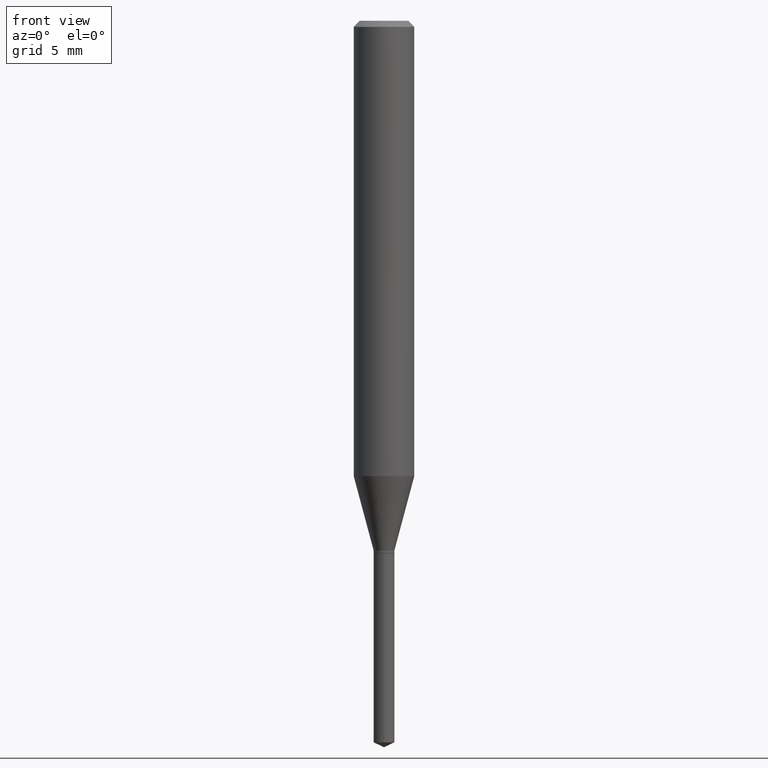
[diagram: clean part render]
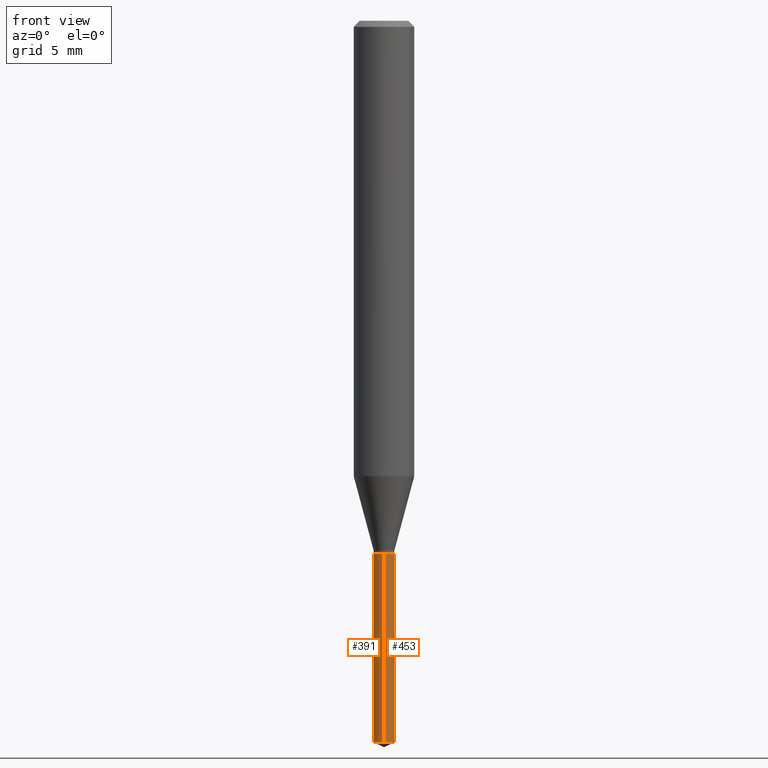
[diagram: same view with one multi-face feature highlighted, each face labeled with its STEP entity id]
A machine part, front view. The highlighted faces form ONE feature: a constant-radius fillet chain: 2 tangent blend faces with common blend radius 0.5461 mm. The faces share edges in the B-rep.
Their STEP definitions:
[1] entity #453 (Cylinder):
#11 = ORIENTED_EDGE ( 'NONE', *, *, #358, .F. ) ;
#20 = LINE ( 'NONE', #213, #166 ) ;
#29 = CARTESIAN_POINT ( 'NONE',  ( 2.690015686803650369E-29, -3.840629472727460101E-15, -1.100000000000000089 ) ) ;
#38 = VECTOR ( 'NONE', #43, 39.37007874015748143 ) ;
#43 = DIRECTION ( 'NONE',  ( -2.445399690415121810E-29, 3.491580316559632610E-15, 1.000000000000000000 ) ) ;
#50 = VERTEX_POINT ( 'NONE', #293 ) ;
#68 = AXIS2_PLACEMENT_3D ( 'NONE', #29, #253, #441 ) ;
#87 = VERTEX_POINT ( 'NONE', #258 ) ;
#89 = CIRCLE ( 'NONE', #313, 0.02150000000000000175 ) ;
#100 = ORIENTED_EDGE ( 'NONE', *, *, #178, .T. ) ;
#123 = VERTEX_POINT ( 'NONE', #337 ) ;
#131 = CYLINDRICAL_SURFACE ( 'NONE', #68, 0.02150000000000000175 ) ;
#163 = CARTESIAN_POINT ( 'NONE',  ( 1.527666881884484230E-16, 0.02149999999999615760, -1.100000000000000089 ) ) ;
#166 = VECTOR ( 'NONE', #209, 39.37007874015748143 ) ;
#169 = VERTEX_POINT ( 'NONE', #419 ) ;
#178 = EDGE_CURVE ( 'NONE', #50, #169, #89, .T. ) ;
#209 = DIRECTION ( 'NONE',  ( -2.445399690415121810E-29, 3.491580316559632610E-15, 1.000000000000000000 ) ) ;
#213 = CARTESIAN_POINT ( 'NONE',  ( -1.501336975702278351E-16, -0.02150000000000384243, -1.099999999999999867 ) ) ;
#253 = DIRECTION ( 'NONE',  ( -2.445399690415121530E-29, 3.491580316559632610E-15, 1.000000000000000000 ) ) ;
#257 = FACE_OUTER_BOUND ( 'NONE', #468, .T. ) ;
#258 = CARTESIAN_POINT ( 'NONE',  ( -1.501336975702278351E-16, -0.02150000000000384243, -1.099999999999999867 ) ) ;
#262 = CIRCLE ( 'NONE', #269, 0.02150000000000000175 ) ;
#269 = AXIS2_PLACEMENT_3D ( 'NONE', #274, #427, #393 ) ;
#274 = CARTESIAN_POINT ( 'NONE',  ( 2.690015686803650369E-29, -3.840629472727460101E-15, -1.100000000000000089 ) ) ;
#281 = ORIENTED_EDGE ( 'NONE', *, *, #478, .F. ) ;
#291 = EDGE_CURVE ( 'NONE', #169, #123, #434, .T. ) ;
#293 = CARTESIAN_POINT ( 'NONE',  ( -1.501336975702182948E-16, -0.02150000000000520939, -1.489974385349667418 ) ) ;
#313 = AXIS2_PLACEMENT_3D ( 'NONE', #375, #382, #416 ) ;
#337 = CARTESIAN_POINT ( 'NONE',  ( 1.527666881884579879E-16, 0.02149999999999615760, -1.100000000000000089 ) ) ;
#358 = EDGE_CURVE ( 'NONE', #87, #123, #262, .T. ) ;
#375 = CARTESIAN_POINT ( 'NONE',  ( 3.643658928007554120E-29, -5.202256360576801008E-15, -1.489974385349667418 ) ) ;
#382 = DIRECTION ( 'NONE',  ( -2.445399690415121530E-29, 3.491580316559632610E-15, 1.000000000000000000 ) ) ;
#393 = DIRECTION ( 'NONE',  ( -6.982962677686265922E-15, -1.000000000000000000, 6.353134868986658336E-15 ) ) ;
#405 = ORIENTED_EDGE ( 'NONE', *, *, #291, .T. ) ;
#416 = DIRECTION ( 'NONE',  ( -6.982962677686265922E-15, -1.000000000000000000, 0.000000000000000000 ) ) ;
#419 = CARTESIAN_POINT ( 'NONE',  ( 1.527666881884579632E-16, 0.02149999999999480105, -1.489974385349667418 ) ) ;
#427 = DIRECTION ( 'NONE',  ( -2.445399690415121530E-29, 3.491580316559632610E-15, 1.000000000000000000 ) ) ;
#434 = LINE ( 'NONE', #163, #38 ) ;
#441 = DIRECTION ( 'NONE',  ( -6.982962677686265922E-15, -1.000000000000000000, 6.353134868986658336E-15 ) ) ;
#453 = ADVANCED_FACE ( 'NONE', ( #257 ), #131, .T. ) ;
#468 = EDGE_LOOP ( 'NONE', ( #100, #405, #11, #281 ) ) ;
#478 = EDGE_CURVE ( 'NONE', #50, #87, #20, .T. ) ;
[2] entity #391 (Cylinder):
#10 = DIRECTION ( 'NONE',  ( -6.982962677686265922E-15, -1.000000000000000000, 0.000000000000000000 ) ) ;
#20 = LINE ( 'NONE', #213, #166 ) ;
#24 = CIRCLE ( 'NONE', #155, 0.02150000000000000175 ) ;
#28 = EDGE_LOOP ( 'NONE', ( #103, #53, #176, #64 ) ) ;
#38 = VECTOR ( 'NONE', #43, 39.37007874015748143 ) ;
#43 = DIRECTION ( 'NONE',  ( -2.445399690415121810E-29, 3.491580316559632610E-15, 1.000000000000000000 ) ) ;
#50 = VERTEX_POINT ( 'NONE', #293 ) ;
#53 = ORIENTED_EDGE ( 'NONE', *, *, #327, .T. ) ;
#54 = FACE_OUTER_BOUND ( 'NONE', #28, .T. ) ;
#64 = ORIENTED_EDGE ( 'NONE', *, *, #160, .F. ) ;
#87 = VERTEX_POINT ( 'NONE', #258 ) ;
#93 = DIRECTION ( 'NONE',  ( -2.445399690415121530E-29, 3.491580316559632610E-15, 1.000000000000000000 ) ) ;
#103 = ORIENTED_EDGE ( 'NONE', *, *, #291, .F. ) ;
#123 = VERTEX_POINT ( 'NONE', #337 ) ;
#129 = AXIS2_PLACEMENT_3D ( 'NONE', #292, #93, #320 ) ;
#155 = AXIS2_PLACEMENT_3D ( 'NONE', #221, #267, #224 ) ;
#160 = EDGE_CURVE ( 'NONE', #123, #87, #24, .T. ) ;
#163 = CARTESIAN_POINT ( 'NONE',  ( 1.527666881884484230E-16, 0.02149999999999615760, -1.100000000000000089 ) ) ;
#166 = VECTOR ( 'NONE', #209, 39.37007874015748143 ) ;
#169 = VERTEX_POINT ( 'NONE', #419 ) ;
#176 = ORIENTED_EDGE ( 'NONE', *, *, #478, .T. ) ;
#209 = DIRECTION ( 'NONE',  ( -2.445399690415121810E-29, 3.491580316559632610E-15, 1.000000000000000000 ) ) ;
#213 = CARTESIAN_POINT ( 'NONE',  ( -1.501336975702278351E-16, -0.02150000000000384243, -1.099999999999999867 ) ) ;
#221 = CARTESIAN_POINT ( 'NONE',  ( 2.690015686803650369E-29, -3.840629472727460101E-15, -1.100000000000000089 ) ) ;
#224 = DIRECTION ( 'NONE',  ( -6.982962677686265922E-15, -1.000000000000000000, 6.353134868986658336E-15 ) ) ;
#247 = CIRCLE ( 'NONE', #374, 0.02150000000000000175 ) ;
#258 = CARTESIAN_POINT ( 'NONE',  ( -1.501336975702278351E-16, -0.02150000000000384243, -1.099999999999999867 ) ) ;
#267 = DIRECTION ( 'NONE',  ( -2.445399690415121530E-29, 3.491580316559632610E-15, 1.000000000000000000 ) ) ;
#291 = EDGE_CURVE ( 'NONE', #169, #123, #434, .T. ) ;
#292 = CARTESIAN_POINT ( 'NONE',  ( 2.690015686803650369E-29, -3.840629472727460101E-15, -1.100000000000000089 ) ) ;
#293 = CARTESIAN_POINT ( 'NONE',  ( -1.501336975702182948E-16, -0.02150000000000520939, -1.489974385349667418 ) ) ;
#320 = DIRECTION ( 'NONE',  ( -6.982962677686265922E-15, -1.000000000000000000, 6.353134868986658336E-15 ) ) ;
#327 = EDGE_CURVE ( 'NONE', #169, #50, #247, .T. ) ;
#337 = CARTESIAN_POINT ( 'NONE',  ( 1.527666881884579879E-16, 0.02149999999999615760, -1.100000000000000089 ) ) ;
#374 = AXIS2_PLACEMENT_3D ( 'NONE', #467, #387, #10 ) ;
#387 = DIRECTION ( 'NONE',  ( -2.445399690415121530E-29, 3.491580316559632610E-15, 1.000000000000000000 ) ) ;
#391 = ADVANCED_FACE ( 'NONE', ( #54 ), #477, .T. ) ;
#419 = CARTESIAN_POINT ( 'NONE',  ( 1.527666881884579632E-16, 0.02149999999999480105, -1.489974385349667418 ) ) ;
#434 = LINE ( 'NONE', #163, #38 ) ;
#467 = CARTESIAN_POINT ( 'NONE',  ( 3.643658928007554120E-29, -5.202256360576801008E-15, -1.489974385349667418 ) ) ;
#477 = CYLINDRICAL_SURFACE ( 'NONE', #129, 0.02150000000000000175 ) ;
#478 = EDGE_CURVE ( 'NONE', #50, #87, #20, .T. ) ;